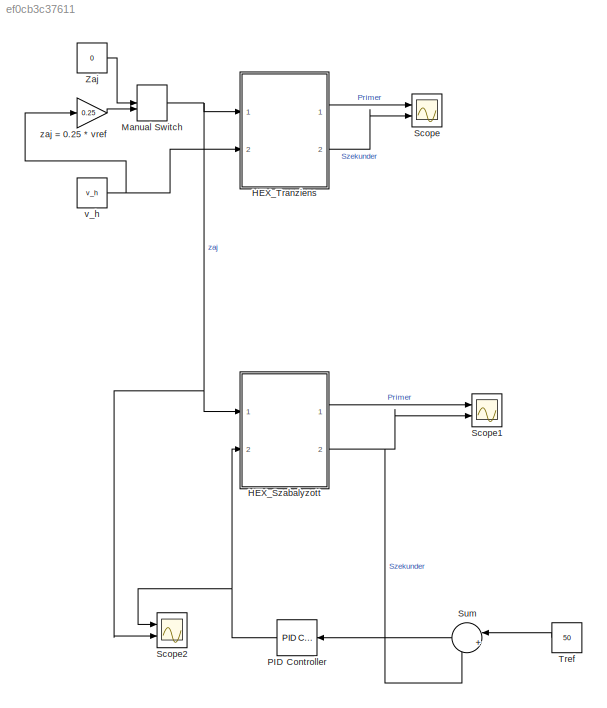
MODEL slx_ef0cb3c37611
KIND model
CONFIG AbsTol = auto
CONFIG EnableMultiTasking = on
CONFIG FixedStep = auto
CONFIG MaxStep = auto
CONFIG MinStep = auto
CONFIG RelTol = auto
CONFIG SampleTimeConstraint = Unconstrained
CONFIG Solver = ode45
CONFIG SolverName = ode45
CONFIG StartTime = 0.0
CONFIG StopTime = 10000
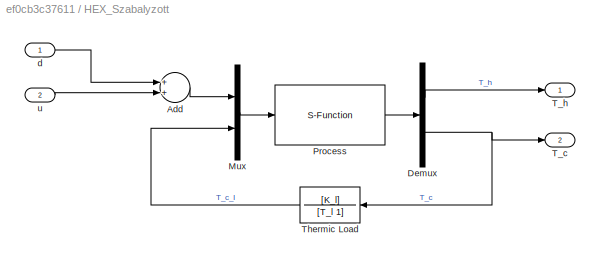
BLOCK [SubSystem] HEX_Szabalyzott
  Ports = [2, 2]
  RequestExecContextInheritance = off
BLOCK [Sum] HEX_Szabalyzott/Add
  InputSameDT = off
  OutDataTypeStr = Inherit: Inherit via internal rule
  Ports = [2, 1]
  SaturateOnIntegerOverflow = off
BLOCK [Demux] HEX_Szabalyzott/Demux
  DisplayOption = bar
  Outputs = 2
  Ports = [1, 2]
BLOCK [Mux] HEX_Szabalyzott/Mux
  DisplayOption = bar
  Inputs = 2
  Ports = [2, 1]
BLOCK [S-Function] HEX_Szabalyzott/Process
  EnableBusSupport = off
  FunctionName = HEX_Process
  Parameters = process_parameters
  Ports = [1, 1]
  SFcnIsStateOwnerBlock = off
  SFunctionDeploymentMode = off
BLOCK [Outport] HEX_Szabalyzott/T_c
  IconDisplay = Port number
  Port = 2
BLOCK [Outport] HEX_Szabalyzott/T_h
  IconDisplay = Port number
BLOCK [TransferFcn] HEX_Szabalyzott/Thermic Load
  Denominator = [T_l 1]
  Numerator = [K_l]
BLOCK [Inport] HEX_Szabalyzott/d
  IconDisplay = Port number
BLOCK [Inport] HEX_Szabalyzott/u
  IconDisplay = Port number
  Port = 2
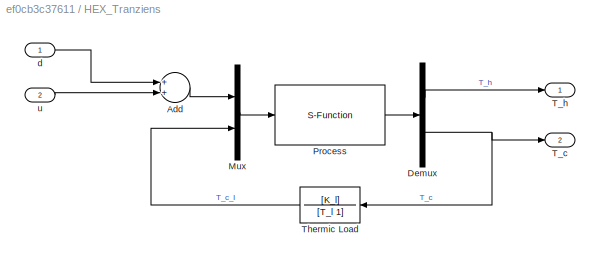
BLOCK [SubSystem] HEX_Tranziens
  Ports = [2, 2]
  RequestExecContextInheritance = off
BLOCK [Sum] HEX_Tranziens/Add
  InputSameDT = off
  OutDataTypeStr = Inherit: Inherit via internal rule
  Ports = [2, 1]
  SaturateOnIntegerOverflow = off
BLOCK [Demux] HEX_Tranziens/Demux
  DisplayOption = bar
  Outputs = 2
  Ports = [1, 2]
BLOCK [Mux] HEX_Tranziens/Mux
  DisplayOption = bar
  Inputs = 2
  Ports = [2, 1]
BLOCK [S-Function] HEX_Tranziens/Process
  EnableBusSupport = off
  FunctionName = HEX_Process
  Parameters = process_parameters
  Ports = [1, 1]
  SFcnIsStateOwnerBlock = off
  SFunctionDeploymentMode = off
BLOCK [Outport] HEX_Tranziens/T_c
  IconDisplay = Port number
  Port = 2
BLOCK [Outport] HEX_Tranziens/T_h
  IconDisplay = Port number
BLOCK [TransferFcn] HEX_Tranziens/Thermic Load
  Denominator = [T_l 1]
  Numerator = [K_l]
BLOCK [Inport] HEX_Tranziens/d
  IconDisplay = Port number
BLOCK [Inport] HEX_Tranziens/u
  IconDisplay = Port number
  Port = 2
BLOCK [ManualSwitch] Manual Switch
  CurrentSetting = 0
BLOCK [Reference] PID Controller  REF=simulink/Continuous/PID Controller
  Ports = [1, 1]
  SourceBlock = simulink/Continuous/PID Controller
  SourceProductBaseCode = SL
  SourceProductName = Simulink
  SourceType = PID 1dof
BLOCK [Scope] Scope
  Floating = off
  NumInputPorts = 2
  Ports = [2]
  ScopeSpecificationString = Simulink.scopes.TimeScopeBlockCfg('CurrentConfiguration', extmgr.ConfigurationSet(extmgr.Configuration('Core','General UI',true),extmgr.Configuration('Core','Source UI',true),extmgr.Configuration('Sources','WiredSimulink',true),extmgr.Configuration('Visuals','Time Domain',true,'SerializedDisplays',{struct('MinYLimReal','14.10029','MaxYLimReal','62.83251','YLabelReal','','MinYLimMag','14.10029','Ma...<+2420ch>
BLOCK [Scope] Scope1
  Floating = off
  NumInputPorts = 2
  Ports = [2]
  ScopeSpecificationString = Simulink.scopes.TimeScopeBlockCfg('CurrentConfiguration', extmgr.ConfigurationSet(extmgr.Configuration('Core','General UI',true),extmgr.Configuration('Core','Source UI',true),extmgr.Configuration('Sources','WiredSimulink',true,'DataLoggingVariableName','ScopeData1'),extmgr.Configuration('Visuals','Time Domain',true,'SerializedDisplays',{struct('MinYLimReal','-7.55327','MaxYLimReal','67.97945','YLa...<+2431ch>
BLOCK [Scope] Scope2
  Floating = off
  NumInputPorts = 2
  Ports = [2]
  ScopeSpecificationString = Simulink.scopes.TimeScopeBlockCfg('CurrentConfiguration', extmgr.ConfigurationSet(extmgr.Configuration('Core','General UI',true),extmgr.Configuration('Core','Source UI',true),extmgr.Configuration('Sources','WiredSimulink',true,'DataLoggingVariableName','ScopeData1'),extmgr.Configuration('Visuals','Time Domain',true,'SerializedDisplays',{struct('MinYLimReal','0.00006','MaxYLimReal','0.00046','YLabe...<+1804ch>
BLOCK [Sum] Sum
  IconShape = round
  InputSameDT = off
  Inputs = |+-
  OutDataTypeStr = Inherit: Inherit via internal rule
  Ports = [2, 1]
  SaturateOnIntegerOverflow = off
BLOCK [Constant] Tref
  Value = 50
BLOCK [Constant] Zaj
  Value = 0
BLOCK [Constant] v_h
  Value = v_h
BLOCK [Gain] zaj = 0.25 * vref
  Gain = 0.25
  OutDataTypeStr = Inherit: Inherit via internal rule
  ParamDataTypeStr = Inherit: Inherit via internal rule
  SaturateOnIntegerOverflow = off
LINE HEX_Szabalyzott/Add:1 -> HEX_Szabalyzott/Mux:1
LINE HEX_Szabalyzott/Demux:1 -> HEX_Szabalyzott/T_h:1
NET HEX_Szabalyzott/Demux:2 -> HEX_Szabalyzott/T_c:1, HEX_Szabalyzott/Thermic Load:1
LINE HEX_Szabalyzott/Mux:1 -> HEX_Szabalyzott/Process:1
LINE HEX_Szabalyzott/Process:1 -> HEX_Szabalyzott/Demux:1
LINE HEX_Szabalyzott/Thermic Load:1 -> HEX_Szabalyzott/Mux:2
LINE HEX_Szabalyzott/d:1 -> HEX_Szabalyzott/Add:1
LINE HEX_Szabalyzott/u:1 -> HEX_Szabalyzott/Add:2
LINE HEX_Szabalyzott:1 -> Scope1:1
NET HEX_Szabalyzott:2 -> Scope1:2, Sum:2
LINE HEX_Tranziens/Add:1 -> HEX_Tranziens/Mux:1
LINE HEX_Tranziens/Demux:1 -> HEX_Tranziens/T_h:1
NET HEX_Tranziens/Demux:2 -> HEX_Tranziens/T_c:1, HEX_Tranziens/Thermic Load:1
LINE HEX_Tranziens/Mux:1 -> HEX_Tranziens/Process:1
LINE HEX_Tranziens/Process:1 -> HEX_Tranziens/Demux:1
LINE HEX_Tranziens/Thermic Load:1 -> HEX_Tranziens/Mux:2
LINE HEX_Tranziens/d:1 -> HEX_Tranziens/Add:1
LINE HEX_Tranziens/u:1 -> HEX_Tranziens/Add:2
LINE HEX_Tranziens:1 -> Scope:1
LINE HEX_Tranziens:2 -> Scope:2
NET Manual Switch:1 -> HEX_Szabalyzott:1, HEX_Tranziens:1, Scope2:2
NET PID Controller:1 -> HEX_Szabalyzott:2, Scope2:1
LINE Sum:1 -> PID Controller:1
LINE Tref:1 -> Sum:1
LINE Zaj:1 -> Manual Switch:1
NET v_h:1 -> HEX_Tranziens:2, zaj = 0.25 * vref:1
LINE zaj = 0.25 * vref:1 -> Manual Switch:2
note: NET lines group one-source signal fan-out (src -> all destinations, sorted); 1:1 wires keep LINE
